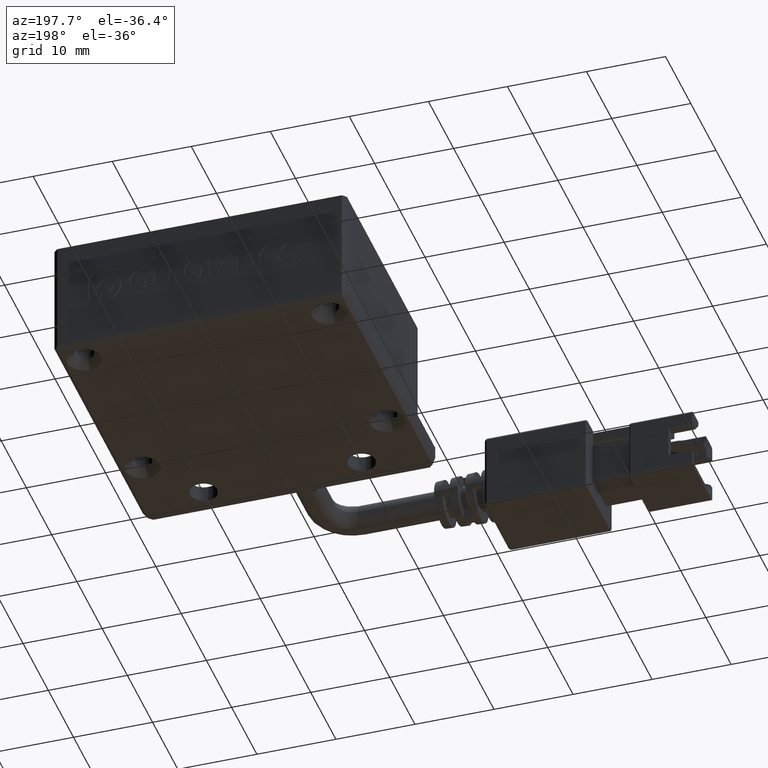
[diagram: clean part render]
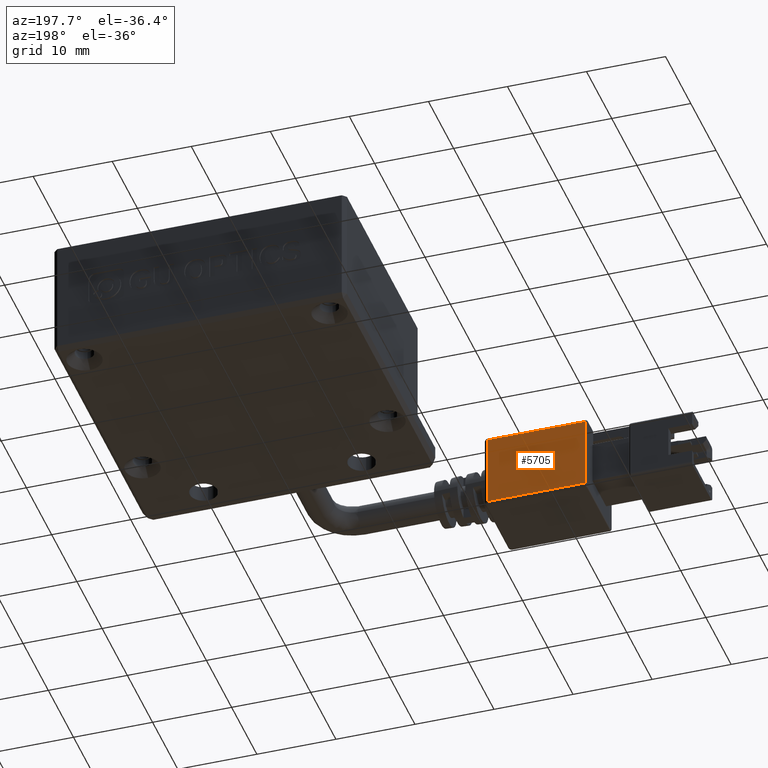
[diagram: same view with one face highlighted and labeled with its STEP entity id]
A machine part, auxiliary view. The second image highlights one B-rep face of the part: STEP entity #5705.
In plain terms, the highlighted planar face has unit normal (0, -1, -0).
Its self-contained STEP definition (entity closure, byte-faithful):
#1030 = ORIENTED_EDGE ( 'NONE', *, *, #5850, .F. ) ;
#1244 = VECTOR ( 'NONE', #9070, 1000.000000000000000 ) ;
#1556 = AXIS2_PLACEMENT_3D ( 'NONE', #14393, #2160, #16485 ) ;
#2160 = DIRECTION ( 'NONE',  ( 6.162975822039154700E-033, -1.000000000000000000, -8.673617379884035500E-017 ) ) ;
#3105 = ORIENTED_EDGE ( 'NONE', *, *, #18182, .F. ) ;
#3381 = CARTESIAN_POINT ( 'NONE',  ( -20.92940053455517800, -33.05364642993504300, -1.000000000016378500 ) ) ;
#4282 = CARTESIAN_POINT ( 'NONE',  ( -20.92940053455517800, -33.05364642993504300, -0.6000000000163782100 ) ) ;
#4544 = FACE_OUTER_BOUND ( 'NONE', #12354, .T. ) ;
#5411 = ORIENTED_EDGE ( 'NONE', *, *, #16127, .F. ) ;
#5491 = VECTOR ( 'NONE', #9135, 1000.000000000000000 ) ;
#5705 = ADVANCED_FACE ( 'NONE', ( #4544 ), #18387, .F. ) ;
#5850 = EDGE_CURVE ( 'NONE', #16992, #8715, #17352, .T. ) ;
#6351 = ORIENTED_EDGE ( 'NONE', *, *, #24364, .F. ) ;
#6649 = CARTESIAN_POINT ( 'NONE',  ( -33.52940053455518000, -33.05364642993504300, -0.6000000000163782100 ) ) ;
#6718 = LINE ( 'NONE', #13274, #1244 ) ;
#6748 = DIRECTION ( 'NONE',  ( 1.000000000000000000, 6.162975822039154700E-033, 5.345529420184391300E-049 ) ) ;
#8715 = VERTEX_POINT ( 'NONE', #4282 ) ;
#9070 = DIRECTION ( 'NONE',  ( -1.000000000000000000, -6.162975822039154700E-033, -5.345529420184391300E-049 ) ) ;
#9080 = VERTEX_POINT ( 'NONE', #19765 ) ;
#9135 = DIRECTION ( 'NONE',  ( -0.0000000000000000000, 8.673617379884035500E-017, -1.000000000000000000 ) ) ;
#12354 = EDGE_LOOP ( 'NONE', ( #5411, #3105, #6351, #1030 ) ) ;
#13070 = CARTESIAN_POINT ( 'NONE',  ( -33.32940053455517000, -33.05364642993504300, -0.6000000000163782100 ) ) ;
#13274 = CARTESIAN_POINT ( 'NONE',  ( -33.52940053455518000, -33.05364642993504300, 8.599999999983621600 ) ) ;
#14393 = CARTESIAN_POINT ( 'NONE',  ( -33.52940053455518000, -33.05364642993504300, -1.000000000016378500 ) ) ;
#15666 = DIRECTION ( 'NONE',  ( 0.0000000000000000000, -8.673617379884035500E-017, 1.000000000000000000 ) ) ;
#16127 = EDGE_CURVE ( 'NONE', #22180, #16992, #21229, .T. ) ;
#16485 = DIRECTION ( 'NONE',  ( 0.0000000000000000000, -8.673617379884035500E-017, 1.000000000000000000 ) ) ;
#16992 = VERTEX_POINT ( 'NONE', #13070 ) ;
#17352 = LINE ( 'NONE', #6649, #22800 ) ;
#18182 = EDGE_CURVE ( 'NONE', #9080, #22180, #6718, .T. ) ;
#18387 = PLANE ( 'NONE',  #1556 ) ;
#18549 = LINE ( 'NONE', #3381, #24017 ) ;
#19765 = CARTESIAN_POINT ( 'NONE',  ( -20.92940053455517800, -33.05364642993504300, 8.599999999983621600 ) ) ;
#21229 = LINE ( 'NONE', #21425, #5491 ) ;
#21343 = CARTESIAN_POINT ( 'NONE',  ( -33.32940053455517000, -33.05364642993504300, 8.599999999983619900 ) ) ;
#21425 = CARTESIAN_POINT ( 'NONE',  ( -33.32940053455517000, -33.05364642993504300, -1.000000000016378500 ) ) ;
#22180 = VERTEX_POINT ( 'NONE', #21343 ) ;
#22800 = VECTOR ( 'NONE', #6748, 1000.000000000000000 ) ;
#24017 = VECTOR ( 'NONE', #15666, 1000.000000000000000 ) ;
#24364 = EDGE_CURVE ( 'NONE', #8715, #9080, #18549, .T. ) ;